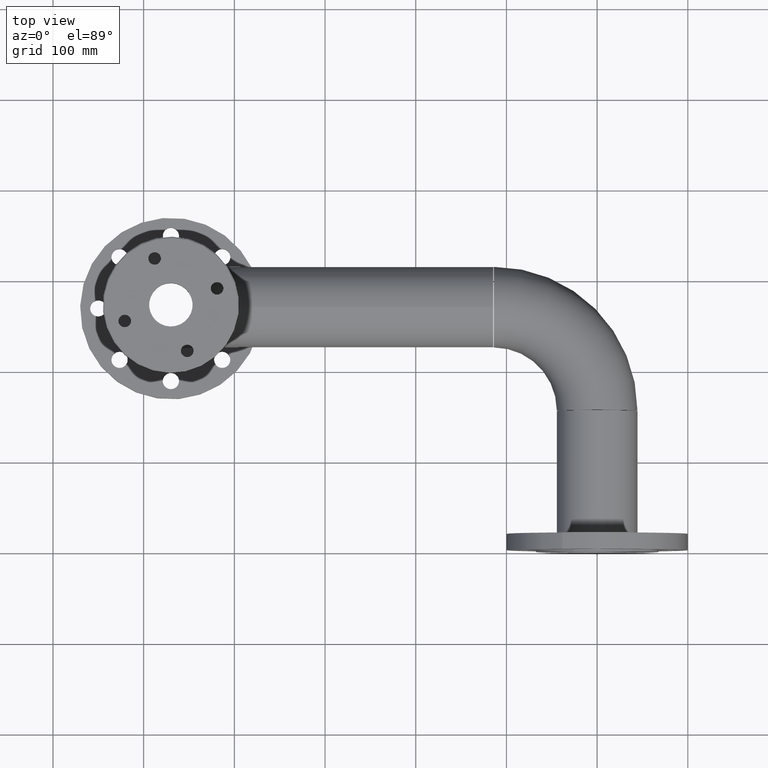
[diagram: clean part render]
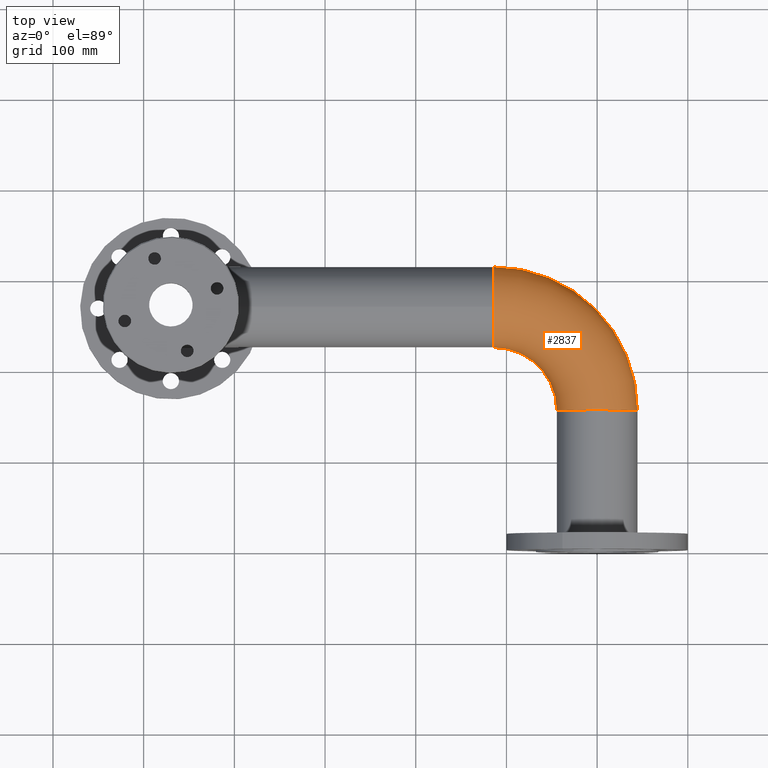
[diagram: same view with one face highlighted and labeled with its STEP entity id]
A machine part, top view. The second image highlights one B-rep face of the part: STEP entity #2837.
In plain terms, the highlighted toroidal blend (fillet) surface has major radius 114 mm and minor (blend) radius 44.45 mm.
Its self-contained STEP definition (entity closure, byte-faithful):
#118 = DIRECTION ( 'NONE',  ( 0.000000000000000000, 0.000000000000000000, -1.000000000000000000 ) ) ;
#169 = DIRECTION ( 'NONE',  ( 1.000000000000000000, 0.000000000000000000, 0.000000000000000000 ) ) ;
#203 = CIRCLE ( 'NONE', #477, 69.54999999999999716 ) ;
#259 = AXIS2_PLACEMENT_3D ( 'NONE', #1972, #427, #169 ) ;
#427 = DIRECTION ( 'NONE',  ( 0.000000000000000000, 0.000000000000000000, 1.000000000000000000 ) ) ;
#477 = AXIS2_PLACEMENT_3D ( 'NONE', #943, #1465, #2790 ) ;
#497 = AXIS2_PLACEMENT_3D ( 'NONE', #3218, #1904, #118 ) ;
#627 = CARTESIAN_POINT ( 'NONE',  ( 0.000000000000000000, 114.0000000000000000, 0.000000000000000000 ) ) ;
#656 = TOROIDAL_SURFACE ( 'NONE', #992, 114.0000000000000000, 44.45000000000000995 ) ;
#725 = CARTESIAN_POINT ( 'NONE',  ( 0.000000000000000000, 158.4500000000000171, 0.000000000000000000 ) ) ;
#777 = ORIENTED_EDGE ( 'NONE', *, *, #1004, .T. ) ;
#814 = EDGE_CURVE ( 'NONE', #815, #3157, #2733, .T. ) ;
#815 = VERTEX_POINT ( 'NONE', #2411 ) ;
#943 = CARTESIAN_POINT ( 'NONE',  ( 0.000000000000000000, 0.000000000000000000, -5.443555022209986486E-15 ) ) ;
#963 = CARTESIAN_POINT ( 'NONE',  ( 0.000000000000000000, 0.000000000000000000, 0.000000000000000000 ) ) ;
#984 = EDGE_CURVE ( 'NONE', #3157, #3100, #2304, .T. ) ;
#992 = AXIS2_PLACEMENT_3D ( 'NONE', #963, #2829, #1001 ) ;
#1001 = DIRECTION ( 'NONE',  ( 1.000000000000000000, 0.000000000000000000, 0.000000000000000000 ) ) ;
#1004 = EDGE_CURVE ( 'NONE', #815, #1041, #203, .T. ) ;
#1041 = VERTEX_POINT ( 'NONE', #2279 ) ;
#1364 = DIRECTION ( 'NONE',  ( 1.000000000000000000, 0.000000000000000000, 0.000000000000000000 ) ) ;
#1465 = DIRECTION ( 'NONE',  ( 0.000000000000000000, 0.000000000000000000, 1.000000000000000000 ) ) ;
#1567 = ORIENTED_EDGE ( 'NONE', *, *, #814, .F. ) ;
#1766 = FACE_OUTER_BOUND ( 'NONE', #3316, .T. ) ;
#1904 = DIRECTION ( 'NONE',  ( 3.169856808907806676E-15, 1.000000000000000000, 0.000000000000000000 ) ) ;
#1972 = CARTESIAN_POINT ( 'NONE',  ( 0.000000000000000000, 0.000000000000000000, 0.000000000000000000 ) ) ;
#2279 = CARTESIAN_POINT ( 'NONE',  ( -69.54999999999999716, 2.204635410595379594E-13, -5.443555022209988064E-15 ) ) ;
#2304 = CIRCLE ( 'NONE', #259, 158.4500000000000171 ) ;
#2351 = AXIS2_PLACEMENT_3D ( 'NONE', #627, #1364, #3268 ) ;
#2411 = CARTESIAN_POINT ( 'NONE',  ( 0.000000000000000000, 69.54999999999999716, -5.443555022209988064E-15 ) ) ;
#2661 = EDGE_CURVE ( 'NONE', #1041, #3100, #3153, .T. ) ;
#2733 = CIRCLE ( 'NONE', #2351, 44.45000000000000995 ) ;
#2790 = DIRECTION ( 'NONE',  ( 1.000000000000000000, 0.000000000000000000, 0.000000000000000000 ) ) ;
#2829 = DIRECTION ( 'NONE',  ( 0.000000000000000000, 0.000000000000000000, 1.000000000000000000 ) ) ;
#2837 = ADVANCED_FACE ( 'NONE', ( #1766 ), #656, .T. ) ;
#3100 = VERTEX_POINT ( 'NONE', #3312 ) ;
#3153 = CIRCLE ( 'NONE', #497, 44.45000000000000995 ) ;
#3157 = VERTEX_POINT ( 'NONE', #725 ) ;
#3160 = ORIENTED_EDGE ( 'NONE', *, *, #2661, .T. ) ;
#3218 = CARTESIAN_POINT ( 'NONE',  ( -114.0000000000000000, 3.613636762154899974E-13, 0.000000000000000000 ) ) ;
#3268 = DIRECTION ( 'NONE',  ( 0.000000000000000000, 0.000000000000000000, -1.000000000000000000 ) ) ;
#3312 = CARTESIAN_POINT ( 'NONE',  ( -158.4500000000000171, 5.022638113714421110E-13, 0.000000000000000000 ) ) ;
#3316 = EDGE_LOOP ( 'NONE', ( #3415, #1567, #777, #3160 ) ) ;
#3415 = ORIENTED_EDGE ( 'NONE', *, *, #984, .F. ) ;